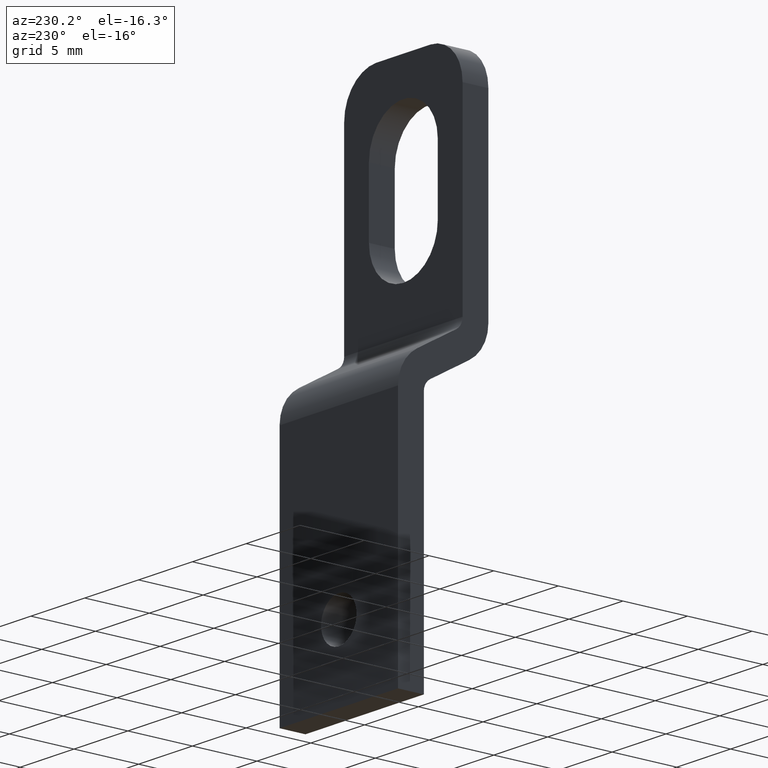
[diagram: clean part render]
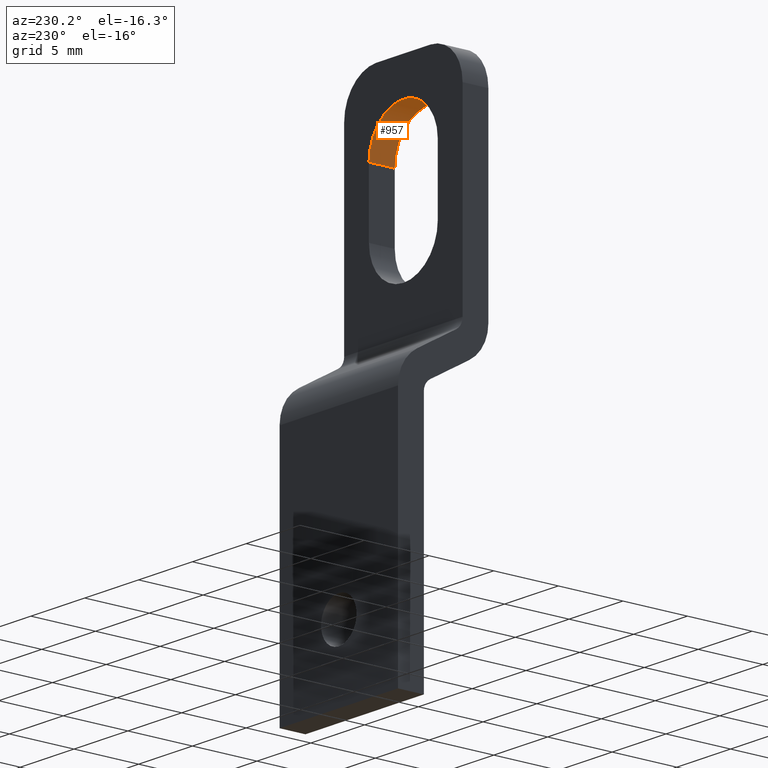
[diagram: same view with one face highlighted and labeled with its STEP entity id]
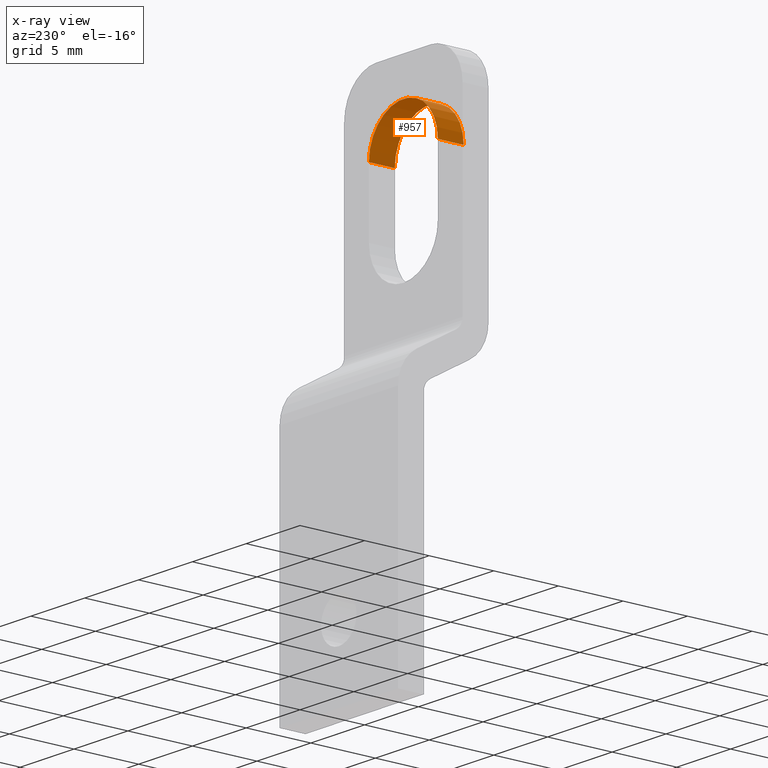
[diagram: x-ray of the same camera — body ghosted, the highlighted face saturated]
A machine part, auxiliary view. The second image highlights one B-rep face of the part: STEP entity #957.
The next image is the same camera in x-ray: the body ghosted, the highlighted face saturated — about 0% of this face is hidden behind the body in this view.
In plain terms, the highlighted cylindrical surface (partial cylindrical patch) has radius 3.2 mm, axis along (0, -1, 0).
Its self-contained STEP definition (entity closure, byte-faithful):
#22 = DIRECTION ( 'NONE',  ( 0.0000000000000000000, -1.000000000000000000, 0.0000000000000000000 ) ) ;
#23 = VECTOR ( 'NONE', #22, 1000.000000000000000 ) ;
#24 = CARTESIAN_POINT ( 'NONE',  ( -3.200000000000000600, 1.999999999999996700, 30.00000000000000400 ) ) ;
#25 = LINE ( 'NONE', #24, #23 ) ;
#26 = DIRECTION ( 'NONE',  ( 0.0000000000000000000, -1.000000000000000000, 0.0000000000000000000 ) ) ;
#27 = VECTOR ( 'NONE', #26, 1000.000000000000000 ) ;
#28 = CARTESIAN_POINT ( 'NONE',  ( 3.200000000000000600, 1.999999999999996700, 30.00000000000000400 ) ) ;
#29 = LINE ( 'NONE', #28, #27 ) ;
#127 = DIRECTION ( 'NONE',  ( 0.0000000000000000000, 0.0000000000000000000, -1.000000000000000000 ) ) ;
#128 = DIRECTION ( 'NONE',  ( -0.0000000000000000000, 1.000000000000000000, -0.0000000000000000000 ) ) ;
#129 = CARTESIAN_POINT ( 'NONE',  ( 0.0000000000000000000, 0.0000000000000000000, 30.00000000000000400 ) ) ;
#130 = AXIS2_PLACEMENT_3D ( 'NONE', #129, #128, #127 ) ;
#131 = CIRCLE ( 'NONE', #130, 3.200000000000001500 ) ;
#134 = CARTESIAN_POINT ( 'NONE',  ( 3.200000000000000600, 0.0000000000000000000, 30.00000000000000400 ) ) ;
#135 = CARTESIAN_POINT ( 'NONE',  ( -3.199999999999999700, 0.0000000000000000000, 30.00000000000000700 ) ) ;
#158 = CARTESIAN_POINT ( 'NONE',  ( 0.0000000000000000000, 1.999999999999996700, 30.00000000000000400 ) ) ;
#159 = CARTESIAN_POINT ( 'NONE',  ( 3.200000000000000600, 1.999999999999996700, 30.00000000000000400 ) ) ;
#160 = CARTESIAN_POINT ( 'NONE',  ( -3.200000000000000600, 1.999999999999996700, 30.00000000000000400 ) ) ;
#213 = DIRECTION ( 'NONE',  ( 0.0000000000000000000, 0.0000000000000000000, -1.000000000000000000 ) ) ;
#214 = DIRECTION ( 'NONE',  ( -0.0000000000000000000, 1.000000000000000000, -0.0000000000000000000 ) ) ;
#215 = AXIS2_PLACEMENT_3D ( 'NONE', #158, #214, #213 ) ;
#216 = CIRCLE ( 'NONE', #215, 3.200000000000001500 ) ;
#532 = CYLINDRICAL_SURFACE ( 'NONE', #584, 3.200000000000001500 ) ;
#533 = FACE_OUTER_BOUND ( 'NONE', #925, .T. ) ;
#580 = DIRECTION ( 'NONE',  ( 0.0000000000000000000, 0.0000000000000000000, -1.000000000000000000 ) ) ;
#581 = DIRECTION ( 'NONE',  ( 0.0000000000000000000, -1.000000000000000000, 0.0000000000000000000 ) ) ;
#583 = CARTESIAN_POINT ( 'NONE',  ( 0.0000000000000000000, 1.999999999999996700, 30.00000000000000400 ) ) ;
#584 = AXIS2_PLACEMENT_3D ( 'NONE', #583, #581, #580 ) ;
#623 = EDGE_CURVE ( 'NONE', #703, #680, #29, .T. ) ;
#626 = ORIENTED_EDGE ( 'NONE', *, *, #623, .T. ) ;
#627 = ORIENTED_EDGE ( 'NONE', *, *, #705, .T. ) ;
#628 = EDGE_CURVE ( 'NONE', #702, #679, #25, .T. ) ;
#629 = ORIENTED_EDGE ( 'NONE', *, *, #628, .F. ) ;
#679 = VERTEX_POINT ( 'NONE', #135 ) ;
#680 = VERTEX_POINT ( 'NONE', #134 ) ;
#682 = EDGE_CURVE ( 'NONE', #679, #680, #131, .T. ) ;
#702 = VERTEX_POINT ( 'NONE', #160 ) ;
#703 = VERTEX_POINT ( 'NONE', #159 ) ;
#705 = EDGE_CURVE ( 'NONE', #702, #703, #216, .T. ) ;
#925 = EDGE_LOOP ( 'NONE', ( #926, #629, #627, #626 ) ) ;
#926 = ORIENTED_EDGE ( 'NONE', *, *, #682, .F. ) ;
#957 = ADVANCED_FACE ( 'NONE', ( #533 ), #532, .F. ) ;